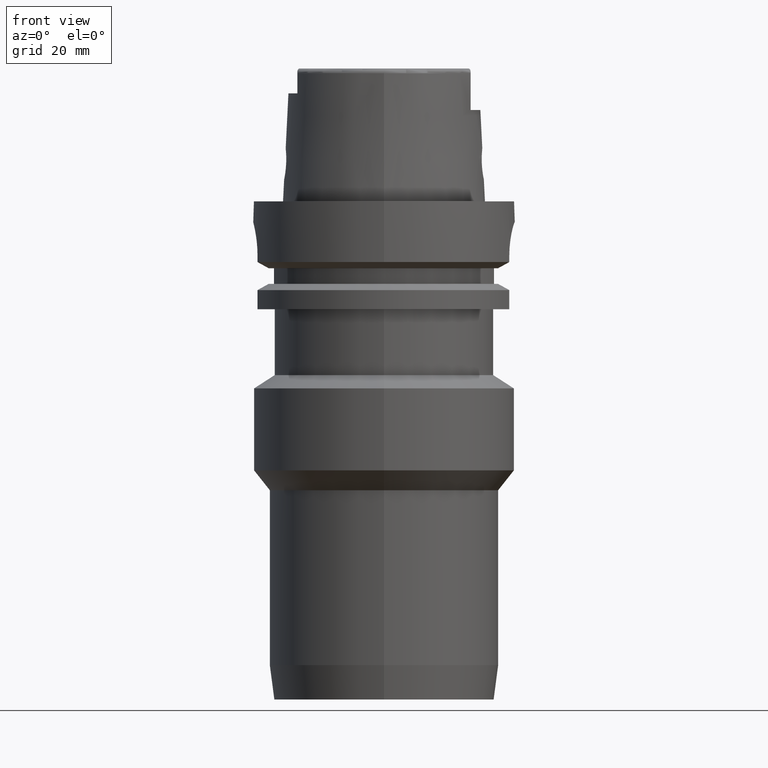
[diagram: clean part render]
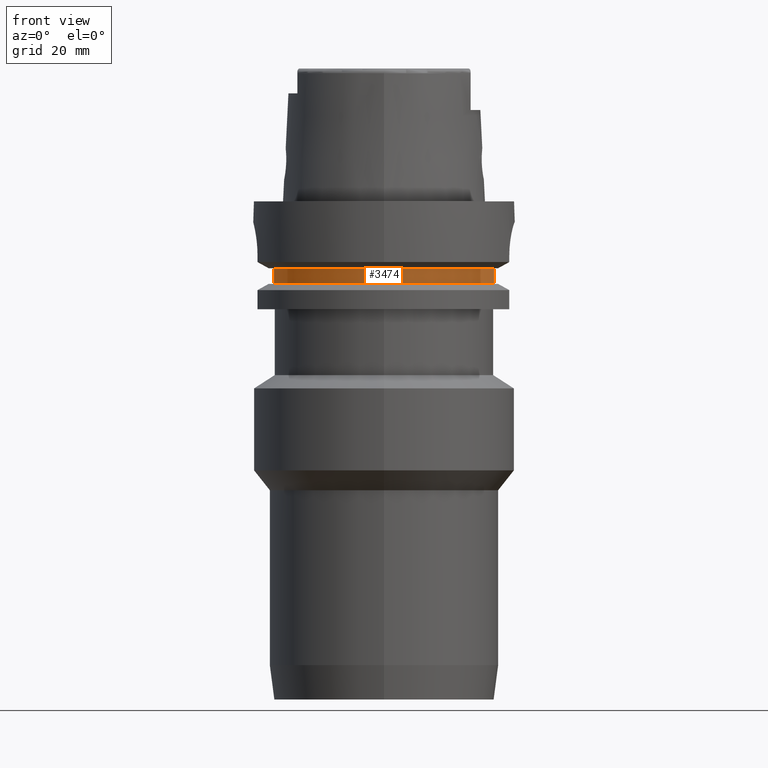
[diagram: same view with one face highlighted and labeled with its STEP entity id]
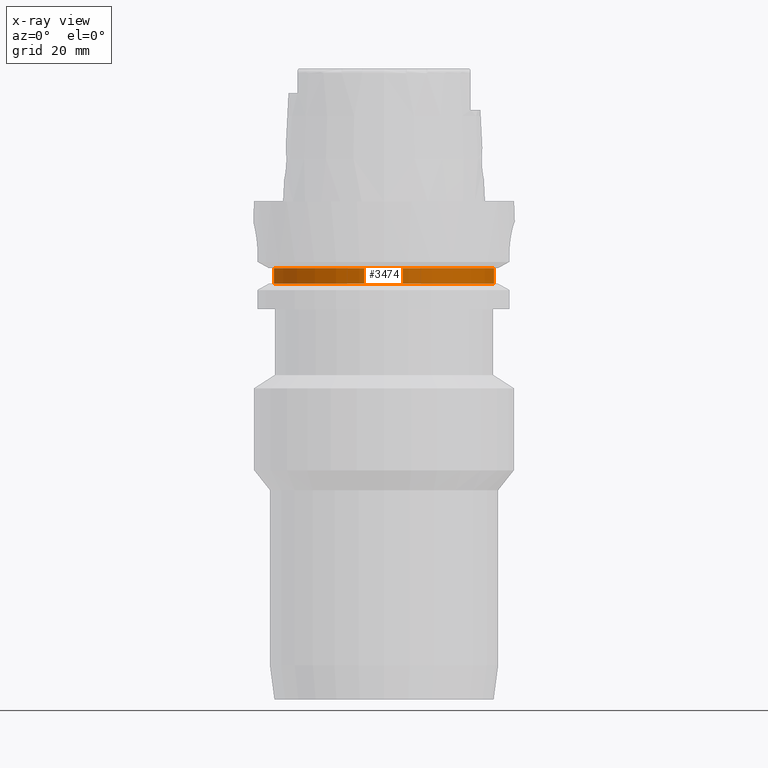
[diagram: x-ray of the same camera — body ghosted, the highlighted face saturated]
A machine part, front view. The second image highlights one B-rep face of the part: STEP entity #3474.
The next image is the same camera in x-ray: the body ghosted, the highlighted face saturated — about 0% of this face is hidden behind the body in this view.
In plain terms, the highlighted cylindrical surface (partial cylindrical patch) has radius 27.5 mm, axis along (0, 0, -1).
Its self-contained STEP definition (entity closure, byte-faithful):
#932=CARTESIAN_POINT('',(0.E0,1.709606931610E-14,-1.6125E1));
#933=DIRECTION('',(0.E0,0.E0,-1.E0));
#934=DIRECTION('',(9.636363636364E-1,-2.672170628491E-1,0.E0));
#935=AXIS2_PLACEMENT_3D('',#932,#933,#934);
#940=CARTESIAN_POINT('',(0.E0,1.709606931610E-14,-1.6125E1));
#941=DIRECTION('',(0.E0,0.E0,-1.E0));
#942=DIRECTION('',(0.E0,-1.E0,0.E0));
#943=AXIS2_PLACEMENT_3D('',#940,#941,#942);
#1214=CARTESIAN_POINT('',(0.E0,1.709606931610E-14,-1.9875E1));
#1215=DIRECTION('',(0.E0,0.E0,1.E0));
#1216=DIRECTION('',(-9.636363636364E-1,-2.672170628491E-1,0.E0));
#1217=AXIS2_PLACEMENT_3D('',#1214,#1215,#1216);
#1222=CARTESIAN_POINT('',(0.E0,1.709606931610E-14,-1.9875E1));
#1223=DIRECTION('',(0.E0,0.E0,1.E0));
#1224=DIRECTION('',(0.E0,-1.E0,0.E0));
#1225=AXIS2_PLACEMENT_3D('',#1222,#1223,#1224);
#1253=DIRECTION('',(0.E0,0.E0,1.E0));
#1254=VECTOR('',#1253,3.75E0);
#1255=CARTESIAN_POINT('',(-2.65E1,-7.348469228350E0,-1.9875E1));
#1256=LINE('',#1255,#1254);
#1260=DIRECTION('',(0.E0,0.E0,-1.E0));
#1261=VECTOR('',#1260,3.75E0);
#1262=CARTESIAN_POINT('',(2.65E1,-7.348469228350E0,-1.6125E1));
#1263=LINE('',#1262,#1261);
#2573=CARTESIAN_POINT('',(-2.65E1,-7.348469228350E0,-1.9875E1));
#2575=VERTEX_POINT('',#2573);
#2576=CARTESIAN_POINT('',(-1.243449787580E-14,-2.75E1,-1.9875E1));
#2577=CARTESIAN_POINT('',(2.65E1,-7.348469228350E0,-1.9875E1));
#2578=VERTEX_POINT('',#2576);
#2579=VERTEX_POINT('',#2577);
#2616=CARTESIAN_POINT('',(-2.65E1,-7.348469228350E0,-1.6125E1));
#2617=VERTEX_POINT('',#2616);
#2643=CARTESIAN_POINT('',(2.65E1,-7.348469228350E0,-1.6125E1));
#2644=VERTEX_POINT('',#2643);
#2655=CARTESIAN_POINT('',(1.776356839400E-14,-2.75E1,-1.6125E1));
#2656=VERTEX_POINT('',#2655);
#3461=CARTESIAN_POINT('',(0.E0,1.709606931610E-14,3.96E1));
#3462=DIRECTION('',(0.E0,0.E0,-1.E0));
#3463=DIRECTION('',(0.E0,-1.E0,0.E0));
#3464=AXIS2_PLACEMENT_3D('',#3461,#3462,#3463);
#3465=CYLINDRICAL_SURFACE('',#3464,2.75E1);
#3466=ORIENTED_EDGE('',*,*,#3263,.T.);
#3467=ORIENTED_EDGE('',*,*,#3239,.F.);
#3468=ORIENTED_EDGE('',*,*,#3237,.F.);
#3469=ORIENTED_EDGE('',*,*,#3371,.T.);
#3470=ORIENTED_EDGE('',*,*,#3449,.F.);
#3471=ORIENTED_EDGE('',*,*,#3447,.F.);
#3472=EDGE_LOOP('',(#3466,#3467,#3468,#3469,#3470,#3471));
#3473=FACE_OUTER_BOUND('',#3472,.F.);
#936=CIRCLE('',#935,2.75E1);
#944=CIRCLE('',#943,2.75E1);
#1218=CIRCLE('',#1217,2.75E1);
#1226=CIRCLE('',#1225,2.75E1);
#3237=EDGE_CURVE('',#2644,#2656,#936,.T.);
#3239=EDGE_CURVE('',#2656,#2617,#944,.T.);
#3263=EDGE_CURVE('',#2575,#2617,#1256,.T.);
#3371=EDGE_CURVE('',#2644,#2579,#1263,.T.);
#3447=EDGE_CURVE('',#2575,#2578,#1218,.T.);
#3449=EDGE_CURVE('',#2578,#2579,#1226,.T.);
#3474=ADVANCED_FACE('',(#3473),#3465,.T.);